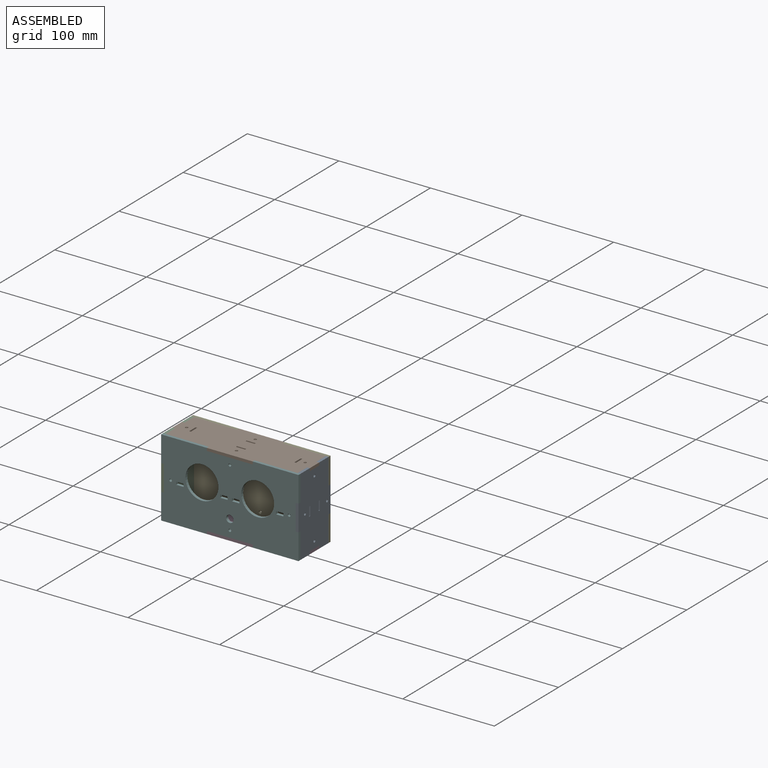
[diagram: assembled view]
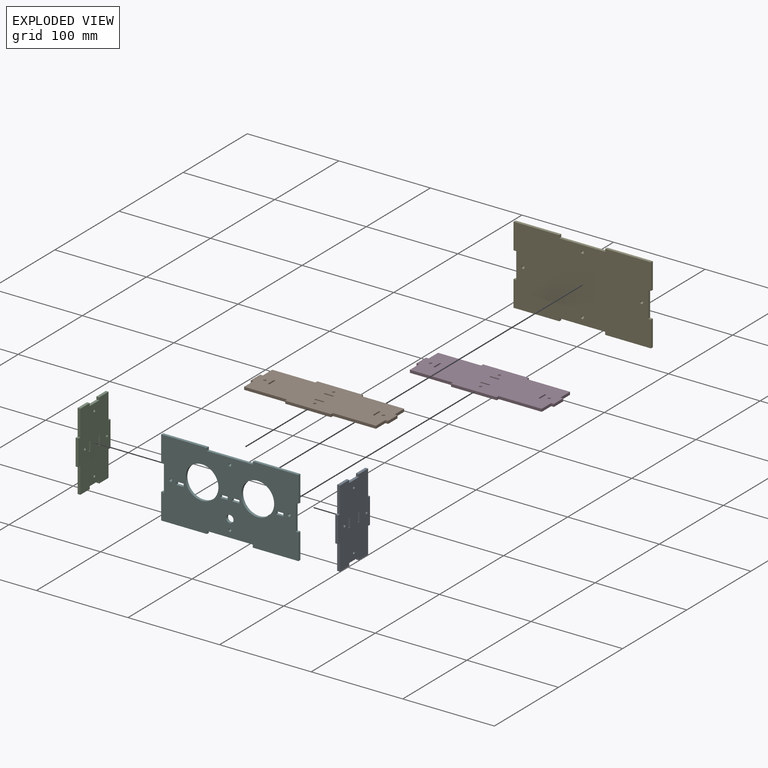
[diagram: exploded view]
GUIDED TOUR — MATED ASSEMBLY (Onshape document 56ded862e4b054e11c27e8ed, AutoMate assembly 56ded862e4b054e11c27e8ed_a44c6361394ee9244f566d48_8e99c92644709b81885d8795_default)

This assembly has 6 components, labeled P0..P5 below (a component is one placed occurrence of a part; the same part can appear more than once), held together by 5 mates. A mate is a constraint between two components; its type names the relative motion it leaves free:
  FASTENED — locks the two components together rigidly (no relative motion).
Axis/direction vectors are unit vectors and 'through' points are millimeter coordinates, both in the assembly's world frame.

MATES
  1. FASTENED "Fastened 2": P2 <-> P5, direction (0.000, -1.000, 0.000) through (112.72, 80.60, 54.43) mm
  2. FASTENED "Fastened 4": P5 <-> P3, direction (0.000, -1.000, 0.000) through (184.72, 80.60, 14.93) mm
  3. FASTENED "Fastened 3": P5 <-> P1, direction (0.000, -1.000, 0.000) through (184.72, 80.60, 93.93) mm
  4. FASTENED "Fastened 1": P5 <-> P0, direction (0.000, -1.000, 0.000) through (256.72, 80.60, 54.43) mm
  5. FASTENED "Fastened 5": P4 <-> P1, direction (0.000, 1.000, 0.000) through (184.72, 130.60, 93.93) mm

ASSEMBLY ORDER
  1. P5 — the base component [order verified]
  2. P1 [order verified]
  3. P3 [order verified]
  4. P0 [order verified]
  5. P4 [order verified]
  6. P2 [order verified]
Order-tag legend:
  [order verified] — this step's position reverses a verified removal order: the component was checked to insert without passing through the ones already placed.

Of the 6 components, 6 carry the full construction recipe — the FeatureScript program that regenerates the part's solid from scratch; the rest are supplied as boundary geometry only.
Each toured component is shown spotlighted twice — in the assembled view, then in the exploded view, where a leader line traces a displaced component back to its assembled socket (saturated green if recipe-attached, orange if geometry-only; every other component desaturated gray) — followed by its recipe or geometry summary and the mates that hold it.
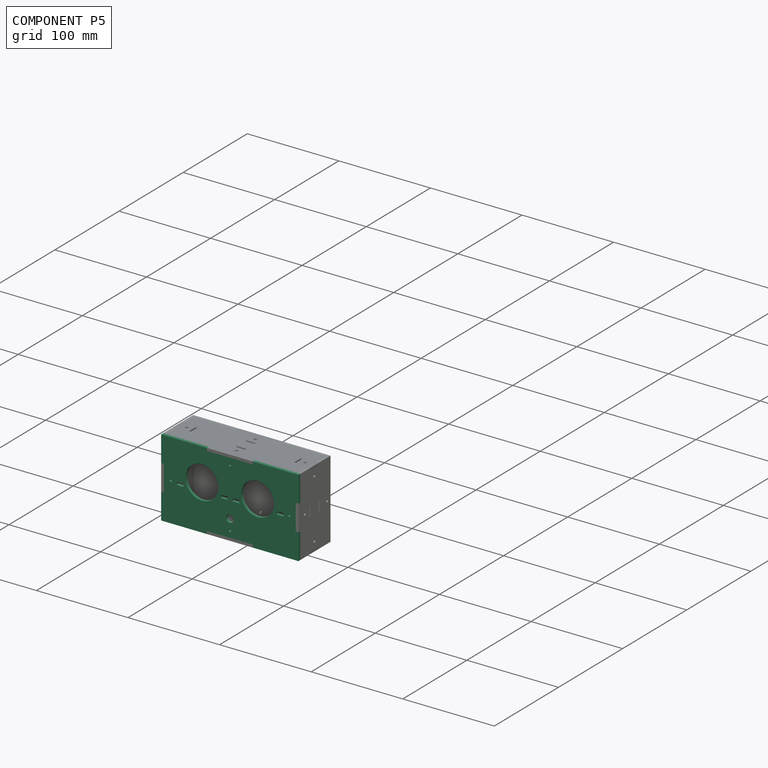
[diagram: component P5 — assembled]
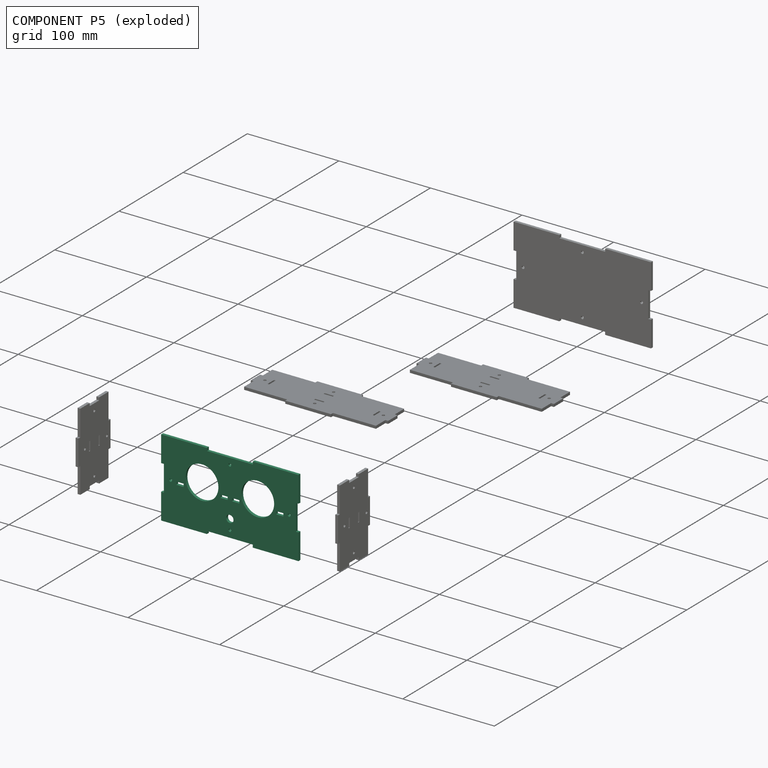
[diagram: component P5 — exploded]
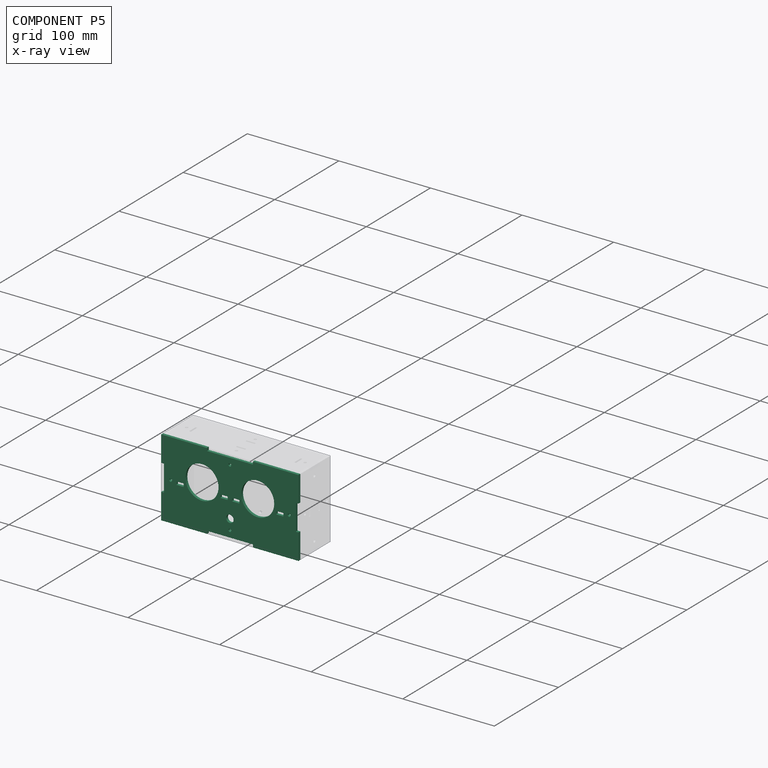
[diagram: component P5 — x-ray view]
COMPONENT P5 — recipe-attached (CADFS 00104917, mesh-verified: the recipe's output STEP matches this component's geometry to below the mesh-comparison resolution (tessellation chordal tolerance ~0.259 mm)).
Held by: FASTENED mate "Fastened 2" to P2; FASTENED mate "Fastened 4" to P3; FASTENED mate "Fastened 3" to P1; FASTENED mate "Fastened 1" to P0.
Construction recipe (FeatureScript — the CAD program that rebuilds this solid; sketch coordinates are in the units given by the * unit suffixes, e.g. mm):

FeatureScript 1511;
import(path : "onshape/std/geometry.fs", version : "1511.0");
import(path : "onshape/std/common.fs", version : "1511.0");
const mm = millimeter;
const VERTEX = EntityType.VERTEX;
const EDGE = EntityType.EDGE;
const FACE = EntityType.FACE;
const BODY = EntityType.BODY;
function v(x, y){return vector(x, y);}
function OD(order){return orderDisambiguation(order);}
function OSD(set){return originalSetDisambiguation(set);}
function TD(topology){return topologyDisambiguation(topology);}
function TDD(query){return trueDependencyDisambiguation(query);}
function sQuery(a, b, c) {return sketchEntityQuery(a, b, c);}

annotation { "Feature Type Name" : "Feature", "Feature Type Description" : "" }
export const myFeature = defineFeature(function(context is Context, id is Id, definition is map)
    precondition{}
    {
        {
            var Q0;
            Q0=qCreatedBy(makeId("Front.planeOp"),FACE);
            var sketch = newSketch(context, id + "F0", { "sketchPlane" : qUnion([Q0])});
            skLineSegment(sketch, "E0.top", {"start": v(-75, -42.5) * mm, "end": v(-25, -42.5) * mm});
            skLineSegment(sketch, "E0.left", {"start": v(-75, 42.5) * mm, "end": v(-75, 14.17) * mm});
            skLineSegment(sketch, "E0.right", {"start": v(75, 42.5) * mm, "end": v(75, 14.17) * mm});
            skLineSegment(sketch, "E1", {"start": v(-75, 42.5) * mm, "end": v(-25, 42.5) * mm});
            skLineSegment(sketch, "E2", {"start": v(-25, 42.5) * mm, "end": v(-25, 39.5) * mm});
            skLineSegment(sketch, "E3", {"start": v(-25, 39.5) * mm, "end": v(25, 39.5) * mm});
            skLineSegment(sketch, "E4", {"start": v(25, 39.5) * mm, "end": v(25, 42.5) * mm});
            skLineSegment(sketch, "E5", {"start": v(25, 42.5) * mm, "end": v(75, 42.5) * mm});
            skLineSegment(sketch, "E6", {"start": v(75, 14.17) * mm, "end": v(72, 14.17) * mm});
            skLineSegment(sketch, "E7", {"start": v(72, 14.17) * mm, "end": v(72, -14.17) * mm});
            skLineSegment(sketch, "E8", {"start": v(72, -14.17) * mm, "end": v(75, -14.17) * mm});
            skLineSegment(sketch, "E9.trimOffspring", {"start": v(75, -14.17) * mm, "end": v(75, -42.5) * mm});
            skLineSegment(sketch, "E10", {"start": v(-75, 14.17) * mm, "end": v(-72, 14.17) * mm});
            skLineSegment(sketch, "E11", {"start": v(-72, 14.17) * mm, "end": v(-72, -14.17) * mm});
            skLineSegment(sketch, "E12", {"start": v(-72, -14.17) * mm, "end": v(-75, -14.17) * mm});
            skLineSegment(sketch, "E13", {"start": v(-25, -42.5) * mm, "end": v(-25, -39.5) * mm});
            skLineSegment(sketch, "E14", {"start": v(-25, -39.5) * mm, "end": v(25, -39.5) * mm});
            skLineSegment(sketch, "E15", {"start": v(25, -39.5) * mm, "end": v(25, -42.5) * mm});
            skLineSegment(sketch, "E16.trimOffspring", {"start": v(-75, -14.17) * mm, "end": v(-75, -42.5) * mm});
            skLineSegment(sketch, "E17.trimOffspring", {"start": v(25, -42.5) * mm, "end": v(75, -42.5) * mm});
            skCircle(sketch, "E18", {"center": v(0, -20.9) * mm, "radius": 4 * mm});
            skCircle(sketch, "E19", {"center": v(0, 32.2) * mm, "radius": 1.5 * mm});
            skCircle(sketch, "E20", {"center": v(64.7, 0) * mm, "radius": 1.5 * mm});
            skCircle(sketch, "E21", {"center": v(0, -32.2) * mm, "radius": 1.5 * mm});
            skCircle(sketch, "E22", {"center": v(-64.7, 0) * mm, "radius": 1.5 * mm});
            skCircle(sketch, "E23", {"center": v(-30.43, 6.9) * mm, "radius": 18 * mm});
            skLineSegment(sketch, "E24.bottom", {"start": v(-10.43, 0.4) * mm, "end": v(-2.33, 0.4) * mm});
            skLineSegment(sketch, "E24.top", {"start": v(-10.43, -2.85) * mm, "end": v(-2.33, -2.85) * mm});
            skLineSegment(sketch, "E24.left", {"start": v(-10.43, 0.4) * mm, "end": v(-10.43, -2.85) * mm});
            skLineSegment(sketch, "E24.right", {"start": v(-2.33, 0.4) * mm, "end": v(-2.33, -2.85) * mm});
            skLineSegment(sketch, "E25.bottom", {"start": v(-50.43, 0.4) * mm, "end": v(-58.53, 0.4) * mm});
            skLineSegment(sketch, "E25.top", {"start": v(-50.43, -2.85) * mm, "end": v(-58.53, -2.85) * mm});
            skLineSegment(sketch, "E25.left", {"start": v(-50.43, 0.4) * mm, "end": v(-50.43, -2.85) * mm});
            skLineSegment(sketch, "E25.right", {"start": v(-58.53, 0.4) * mm, "end": v(-58.53, -2.85) * mm});
            skLineSegment(sketch, "E26", {"start": v(-72, 0) * mm, "end": v(-64.7, 0) * mm, "construction": true});
            skLineSegment(sketch, "E27", {"start": v(64.7, 0) * mm, "end": v(72, 0) * mm, "construction": true});
            skLineSegment(sketch, "E28", {"start": v(-75, 24.9) * mm, "end": v(75, 24.9) * mm, "construction": true});
            skLineSegment(sketch, "E29", {"start": v(-75, -11.1) * mm, "end": v(75, -11.1) * mm, "construction": true});
            skLineSegment(sketch, "E30", {"start": v(0, 30.7) * mm, "end": v(0, 24.9) * mm, "construction": true});
            skLineSegment(sketch, "E31", {"start": v(0, -16.9) * mm, "end": v(0, -11.1) * mm, "construction": true});
            skLineSegment(sketch, "E32", {"start": v(0, -30.7) * mm, "end": v(0, -24.9) * mm, "construction": true});
            skLineSegment(sketch, "E33", {"start": v(0, 39.5) * mm, "end": v(0, -39.5) * mm, "construction": true});
            skLineSegment(sketch, "E34.MirrorCS", {"start": v(2.33, 0.4) * mm, "end": v(2.33, -2.85) * mm});
            skLineSegment(sketch, "E35.MirrorCS", {"start": v(10.43, 0.4) * mm, "end": v(10.43, -2.85) * mm});
            skLineSegment(sketch, "E36.MirrorCS", {"start": v(50.43, 0.4) * mm, "end": v(50.43, -2.85) * mm});
            skLineSegment(sketch, "E37.MirrorCS", {"start": v(58.53, 0.4) * mm, "end": v(58.53, -2.85) * mm});
            skLineSegment(sketch, "E38.MirrorCS", {"start": v(10.43, -2.85) * mm, "end": v(2.33, -2.85) * mm});
            skLineSegment(sketch, "E39.MirrorCS", {"start": v(50.43, 0.4) * mm, "end": v(58.53, 0.4) * mm});
            skCircle(sketch, "E40.MirrorC", {"center": v(30.43, 6.9) * mm, "radius": 18 * mm});
            skLineSegment(sketch, "E41.MirrorCS", {"start": v(10.43, 0.4) * mm, "end": v(2.33, 0.4) * mm});
            skLineSegment(sketch, "E42.MirrorCS", {"start": v(50.43, -2.85) * mm, "end": v(58.53, -2.85) * mm});
            skLineSegment(sketch, "E43", {"start": v(-58.53, 0) * mm, "end": v(-63.2, 0) * mm});
            skLineSegment(sketch, "E44", {"start": v(58.53, 0) * mm, "end": v(63.2, 0) * mm, "construction": true});
            skLineSegment(sketch, "E45", {"start": v(-2.33, -1.22) * mm, "end": v(2.33, -1.22) * mm, "construction": true});
            skSolve(sketch);
        }
        {
            var Q0;
            Q0=qSketchRegion(id+"F0",true);
            extrude(context, id + "F1", {"entities" : qUnion([Q0]), "depth" : 3 * mm});
        }
        {
            var Q0;
            Q0=makeQuery(id+"F1.opExtrude","SWEPT_BODY",BODY,{"disambiguationData":[OSD([sQuery(id+"F0.wireOp",EDGE,"E0.top"),sQuery(id+"F0.wireOp",EDGE,"E0.left"),sQuery(id+"F0.wireOp",EDGE,"E0.right"),sQuery(id+"F0.wireOp",EDGE,"E1"),sQuery(id+"F0.wireOp",EDGE,"E2"),sQuery(id+"F0.wireOp",EDGE,"E3"),sQuery(id+"F0.wireOp",EDGE,"E4"),sQuery(id+"F0.wireOp",EDGE,"E5"),sQuery(id+"F0.wireOp",EDGE,"E6"),sQuery(id+"F0.wireOp",EDGE,"E7"),sQuery(id+"F0.wireOp",EDGE,"E8"),sQuery(id+"F0.wireOp",EDGE,"E9.trimOffspring"),sQuery(id+"F0.wireOp",EDGE,"E10"),sQuery(id+"F0.wireOp",EDGE,"E11"),sQuery(id+"F0.wireOp",EDGE,"E12"),sQuery(id+"F0.wireOp",EDGE,"E13"),sQuery(id+"F0.wireOp",EDGE,"E14"),sQuery(id+"F0.wireOp",EDGE,"E15"),sQuery(id+"F0.wireOp",EDGE,"E16.trimOffspring"),sQuery(id+"F0.wireOp",EDGE,"E17.trimOffspring"),sQuery(id+"F0.wireOp",EDGE,"iJvMOkkT-Gsvz-D80s-Lrck-NuYzV2775GFc"),sQuery(id+"F0.wireOp",EDGE,"95r7G61u-81NE-ogXZ-HZlh-HaEjHri7Uc5C"),sQuery(id+"F0.wireOp",EDGE,"kNa5tEdO-uy4Q-kRTS-gWff-R1CwjTJMmlwP"),sQuery(id+"F0.wireOp",EDGE,"NSmLs8Xq-7i2g-OZIT-hmmc-yelxhuIJ4KvX"),sQuery(id+"F0.wireOp",EDGE,"4YweHJoU-akzP-T6YO-Ozvt-s9SiKn9Ip7Ij"),sQuery(id+"F0.wireOp",EDGE,"DRZYSCKz-exI7-oD3f-2VZ2-mNw9MquuhidN"),sQuery(id+"F0.wireOp",EDGE,"cFZweqHX-i8zY-QQJQ-dr00-DEtuZUepJHJH"),sQuery(id+"F0.wireOp",EDGE,"vflKgIvX-I86b-ziDt-TOTA-sqA9vDxPemz3"),sQuery(id+"F0.wireOp",EDGE,"E18"),sQuery(id+"F0.wireOp",EDGE,"E19"),sQuery(id+"F0.wireOp",EDGE,"E20"),sQuery(id+"F0.wireOp",EDGE,"E21"),sQuery(id+"F0.wireOp",EDGE,"E22")])]});
            transform(context, id + "F2", {"entities" : qUnion([Q0]), "transformType" : TransformType.TRANSLATION_3D, "dx" : 0 * mm, "dy" : 60 * mm, "dz" : 0 * mm, "makeCopy" : true});
        }
        {
            var Q0;
            Q0=makeQuery(id+"F2.opPattern","COPY",BODY,{"derivedFrom":makeQuery(id+"F1.opExtrude","SWEPT_BODY",BODY,{"disambiguationData":[OSD([sQuery(id+"F0.wireOp",EDGE,"E0.top"),sQuery(id+"F0.wireOp",EDGE,"E0.left"),sQuery(id+"F0.wireOp",EDGE,"E0.right"),sQuery(id+"F0.wireOp",EDGE,"E1"),sQuery(id+"F0.wireOp",EDGE,"E2"),sQuery(id+"F0.wireOp",EDGE,"E3"),sQuery(id+"F0.wireOp",EDGE,"E4"),sQuery(id+"F0.wireOp",EDGE,"E5"),sQuery(id+"F0.wireOp",EDGE,"E6"),sQuery(id+"F0.wireOp",EDGE,"E7"),sQuery(id+"F0.wireOp",EDGE,"E8"),sQuery(id+"F0.wireOp",EDGE,"E9.trimOffspring"),sQuery(id+"F0.wireOp",EDGE,"E10"),sQuery(id+"F0.wireOp",EDGE,"E11"),sQuery(id+"F0.wireOp",EDGE,"E12"),sQuery(id+"F0.wireOp",EDGE,"E13"),sQuery(id+"F0.wireOp",EDGE,"E14"),sQuery(id+"F0.wireOp",EDGE,"E15"),sQuery(id+"F0.wireOp",EDGE,"E16.trimOffspring"),sQuery(id+"F0.wireOp",EDGE,"E17.trimOffspring"),sQuery(id+"F0.wireOp",EDGE,"iJvMOkkT-Gsvz-D80s-Lrck-NuYzV2775GFc"),sQuery(id+"F0.wireOp",EDGE,"95r7G61u-81NE-ogXZ-HZlh-HaEjHri7Uc5C"),sQuery(id+"F0.wireOp",EDGE,"kNa5tEdO-uy4Q-kRTS-gWff-R1CwjTJMmlwP"),sQuery(id+"F0.wireOp",EDGE,"NSmLs8Xq-7i2g-OZIT-hmmc-yelxhuIJ4KvX"),sQuery(id+"F0.wireOp",EDGE,"4YweHJoU-akzP-T6YO-Ozvt-s9SiKn9Ip7Ij"),sQuery(id+"F0.wireOp",EDGE,"DRZYSCKz-exI7-oD3f-2VZ2-mNw9MquuhidN"),sQuery(id+"F0.wireOp",EDGE,"cFZweqHX-i8zY-QQJQ-dr00-DEtuZUepJHJH"),sQuery(id+"F0.wireOp",EDGE,"vflKgIvX-I86b-ziDt-TOTA-sqA9vDxPemz3"),sQuery(id+"F0.wireOp",EDGE,"E18"),sQuery(id+"F0.wireOp",EDGE,"E19"),sQuery(id+"F0.wireOp",EDGE,"E20"),sQuery(id+"F0.wireOp",EDGE,"E21"),sQuery(id+"F0.wireOp",EDGE,"E22")])]}),"instanceName":"1"});
            deleteBodies(context, id + "F3", {"entities" : qUnion([Q0])});
        }
    });
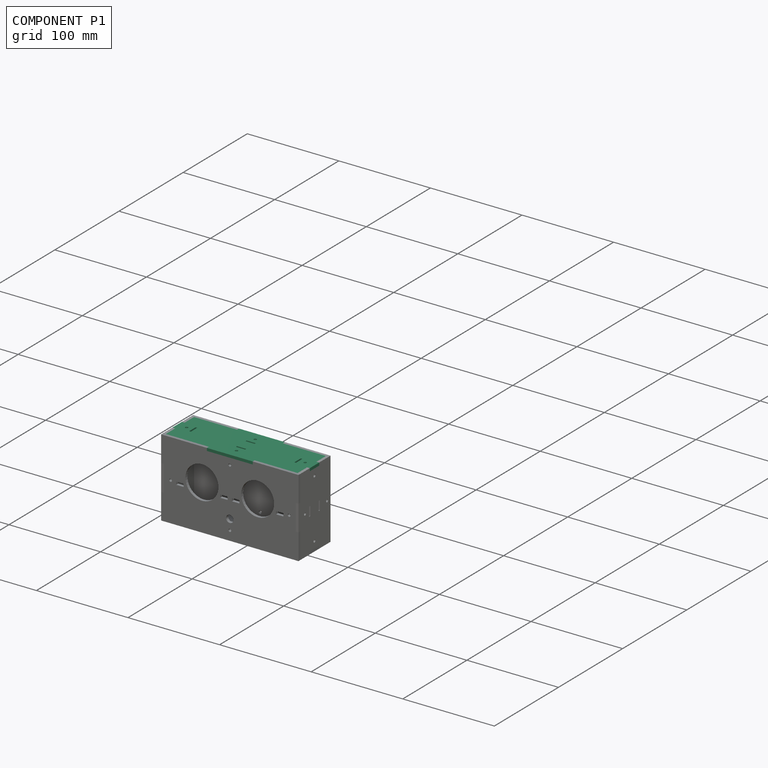
[diagram: component P1 — assembled]
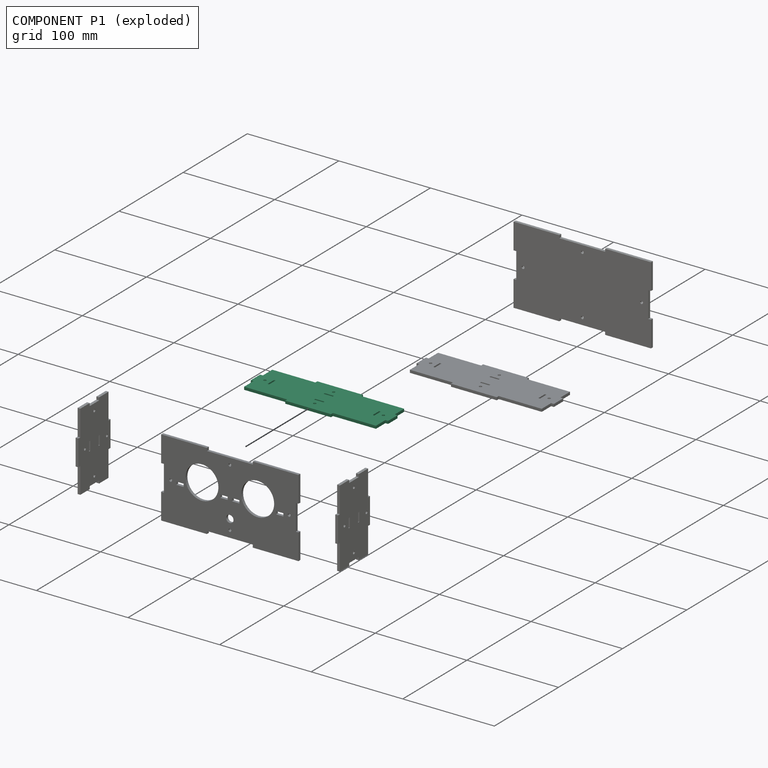
[diagram: component P1 — exploded]
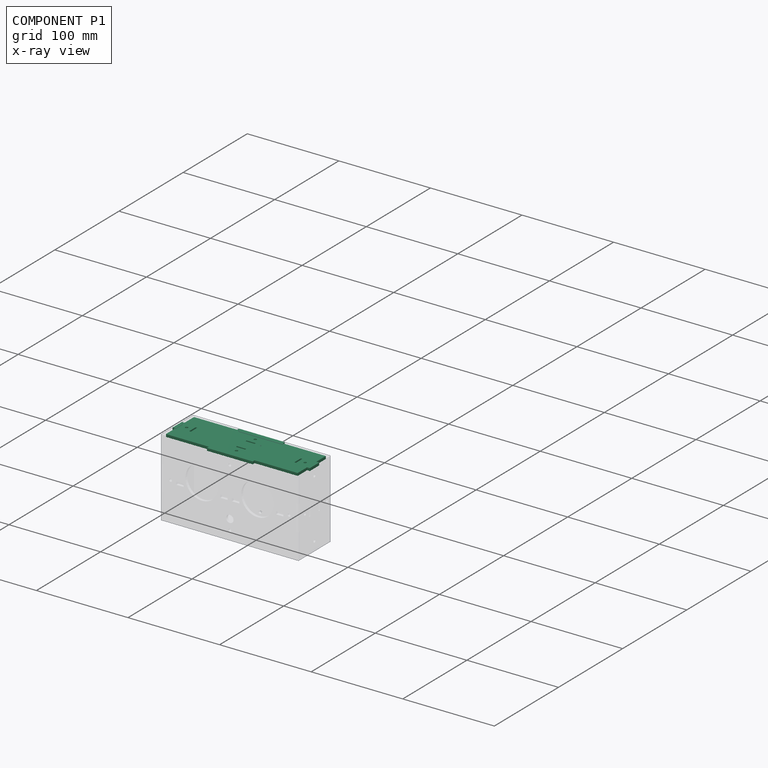
[diagram: component P1 — x-ray view]
COMPONENT P1 — recipe-attached (CADFS 00104920, mesh-verified: the recipe's output STEP matches this component's geometry to below the mesh-comparison resolution (tessellation chordal tolerance ~0.237 mm)).
Held by: FASTENED mate "Fastened 3" to P5; FASTENED mate "Fastened 5" to P4.
Construction recipe (FeatureScript — the CAD program that rebuilds this solid; sketch coordinates are in the units given by the * unit suffixes, e.g. mm):

FeatureScript 1511;
import(path : "onshape/std/geometry.fs", version : "1511.0");
import(path : "onshape/std/common.fs", version : "1511.0");
const mm = millimeter;
const VERTEX = EntityType.VERTEX;
const EDGE = EntityType.EDGE;
const FACE = EntityType.FACE;
const BODY = EntityType.BODY;
function v(x, y){return vector(x, y);}
function OD(order){return orderDisambiguation(order);}
function OSD(set){return originalSetDisambiguation(set);}
function TD(topology){return topologyDisambiguation(topology);}
function TDD(query){return trueDependencyDisambiguation(query);}
function sQuery(a, b, c) {return sketchEntityQuery(a, b, c);}

annotation { "Feature Type Name" : "Feature", "Feature Type Description" : "" }
export const myFeature = defineFeature(function(context is Context, id is Id, definition is map)
    precondition{}
    {
        {
            var Q0;
            Q0=qCreatedBy(makeId("Top.planeOp"),FACE);
            var sketch = newSketch(context, id + "F0", { "sketchPlane" : qUnion([Q0])});
            skLineSegment(sketch, "E0.bottom", {"start": v(-72, 22) * mm, "end": v(-25, 22) * mm});
            skLineSegment(sketch, "E0.top", {"start": v(-72, -22) * mm, "end": v(-25, -22) * mm});
            skLineSegment(sketch, "E0.left", {"start": v(-72, 22) * mm, "end": v(-72, 7.33) * mm});
            skLineSegment(sketch, "E0.right", {"start": v(72, 22) * mm, "end": v(72, 7.33) * mm});
            skLineSegment(sketch, "E1.bottom", {"start": v(-72, 7.33) * mm, "end": v(-75, 7.33) * mm});
            skLineSegment(sketch, "E1.top", {"start": v(-72, -7.33) * mm, "end": v(-75, -7.33) * mm});
            skLineSegment(sketch, "E1.right", {"start": v(-75, 7.33) * mm, "end": v(-75, -7.33) * mm});
            skLineSegment(sketch, "E2.top", {"start": v(-25, 25) * mm, "end": v(25, 25) * mm});
            skLineSegment(sketch, "E2.left", {"start": v(-25, 22) * mm, "end": v(-25, 25) * mm});
            skLineSegment(sketch, "E2.right", {"start": v(25, 22) * mm, "end": v(25, 25) * mm});
            skLineSegment(sketch, "E3.bottom", {"start": v(72, 7.33) * mm, "end": v(75, 7.33) * mm});
            skLineSegment(sketch, "E3.top", {"start": v(72, -7.33) * mm, "end": v(75, -7.33) * mm});
            skLineSegment(sketch, "E3.right", {"start": v(75, 7.33) * mm, "end": v(75, -7.33) * mm});
            skLineSegment(sketch, "E4.top", {"start": v(25, -25) * mm, "end": v(-25, -25) * mm});
            skLineSegment(sketch, "E4.left", {"start": v(25, -22) * mm, "end": v(25, -25) * mm});
            skLineSegment(sketch, "E4.right", {"start": v(-25, -22) * mm, "end": v(-25, -25) * mm});
            skLineSegment(sketch, "E5.trimOffspring", {"start": v(25, 22) * mm, "end": v(72, 22) * mm});
            skLineSegment(sketch, "E6.trimOffspring", {"start": v(25, -22) * mm, "end": v(72, -22) * mm});
            skLineSegment(sketch, "E7.trimOffspring", {"start": v(-72, -7.33) * mm, "end": v(-72, -22) * mm});
            skLineSegment(sketch, "E8.trimOffspring", {"start": v(72, -7.33) * mm, "end": v(72, -22) * mm});
            skLineSegment(sketch, "E9", {"start": v(-75, 25) * mm, "end": v(-25, 25) * mm, "construction": true});
            skLineSegment(sketch, "E10", {"start": v(25, 25) * mm, "end": v(75, 25) * mm, "construction": true});
            skCircle(sketch, "E11", {"center": v(-64.7, 0) * mm, "radius": 1.5 * mm});
            skLineSegment(sketch, "E12.bottom", {"start": v(-58.3, 5) * mm, "end": v(-56.5, 5) * mm});
            skLineSegment(sketch, "E12.top", {"start": v(-58.3, -5) * mm, "end": v(-56.5, -5) * mm});
            skLineSegment(sketch, "E12.left", {"start": v(-58.3, 5) * mm, "end": v(-58.3, -5) * mm});
            skLineSegment(sketch, "E12.right", {"start": v(-56.5, 5) * mm, "end": v(-56.5, -5) * mm});
            skLineSegment(sketch, "E13.MirrorCS", {"start": v(58.3, 5) * mm, "end": v(56.5, 5) * mm});
            skLineSegment(sketch, "E14.MirrorCS", {"start": v(58.3, -5) * mm, "end": v(56.5, -5) * mm});
            skLineSegment(sketch, "E15.MirrorCS", {"start": v(56.5, 5) * mm, "end": v(56.5, -5) * mm});
            skLineSegment(sketch, "E16.MirrorCS", {"start": v(58.3, 5) * mm, "end": v(58.3, -5) * mm});
            skCircle(sketch, "E17", {"center": v(0, 14.7) * mm, "radius": 1.5 * mm});
            skLineSegment(sketch, "E18.bottom", {"start": v(5, 8.3) * mm, "end": v(-5, 8.3) * mm});
            skLineSegment(sketch, "E18.top", {"start": v(5, 6.5) * mm, "end": v(-5, 6.5) * mm});
            skLineSegment(sketch, "E18.left", {"start": v(5, 8.3) * mm, "end": v(5, 6.5) * mm});
            skLineSegment(sketch, "E18.right", {"start": v(-5, 8.3) * mm, "end": v(-5, 6.5) * mm});
            skLineSegment(sketch, "E19.MirrorCS", {"start": v(-5, -8.3) * mm, "end": v(-5, -6.5) * mm});
            skLineSegment(sketch, "E20.MirrorCS", {"start": v(5, -8.3) * mm, "end": v(5, -6.5) * mm});
            skCircle(sketch, "E21.MirrorC", {"center": v(0, -14.7) * mm, "radius": 1.5 * mm});
            skLineSegment(sketch, "E22.MirrorCS", {"start": v(5, -6.5) * mm, "end": v(-5, -6.5) * mm});
            skLineSegment(sketch, "E23.MirrorCS", {"start": v(5, -8.3) * mm, "end": v(-5, -8.3) * mm});
            skCircle(sketch, "E24.MirrorC", {"center": v(64.7, 0) * mm, "radius": 1.5 * mm});
            skSolve(sketch);
        }
        {
            var Q0;
            Q0=qSketchRegion(id+"F0",true);
            extrude(context, id + "F1", {"entities" : qUnion([Q0]), "depth" : 3 * mm});
        }
    });
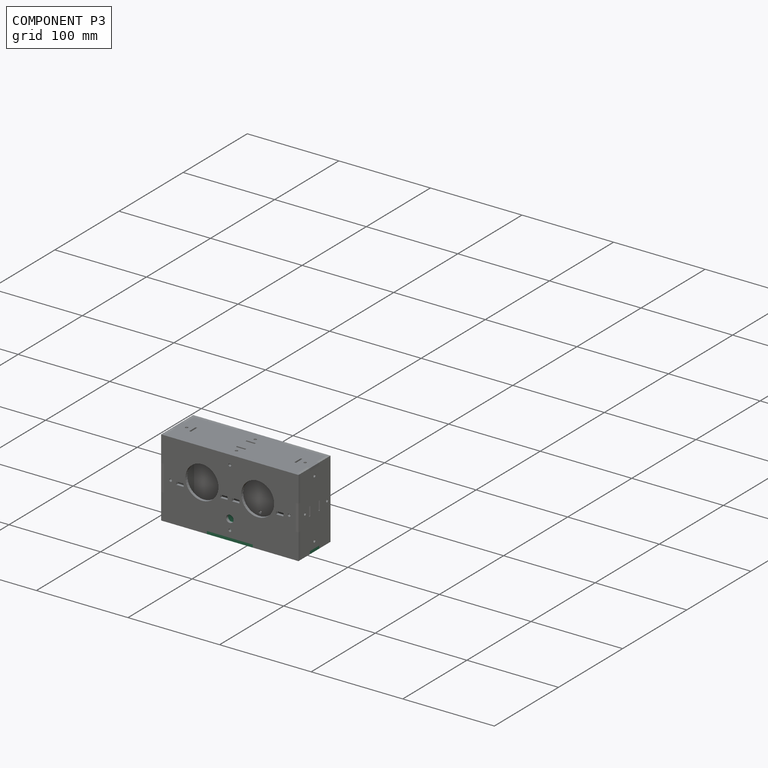
[diagram: component P3 — assembled]
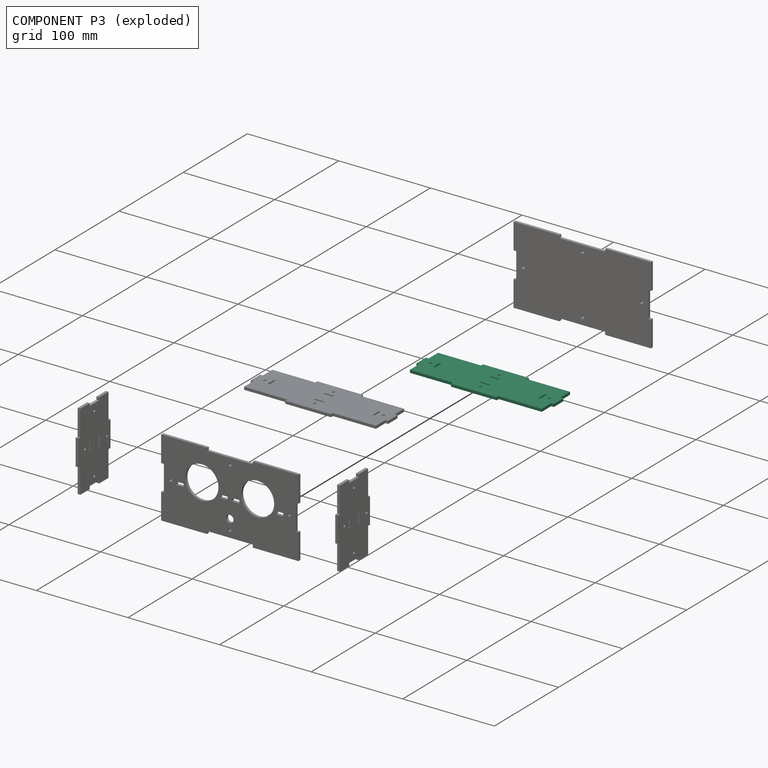
[diagram: component P3 — exploded]
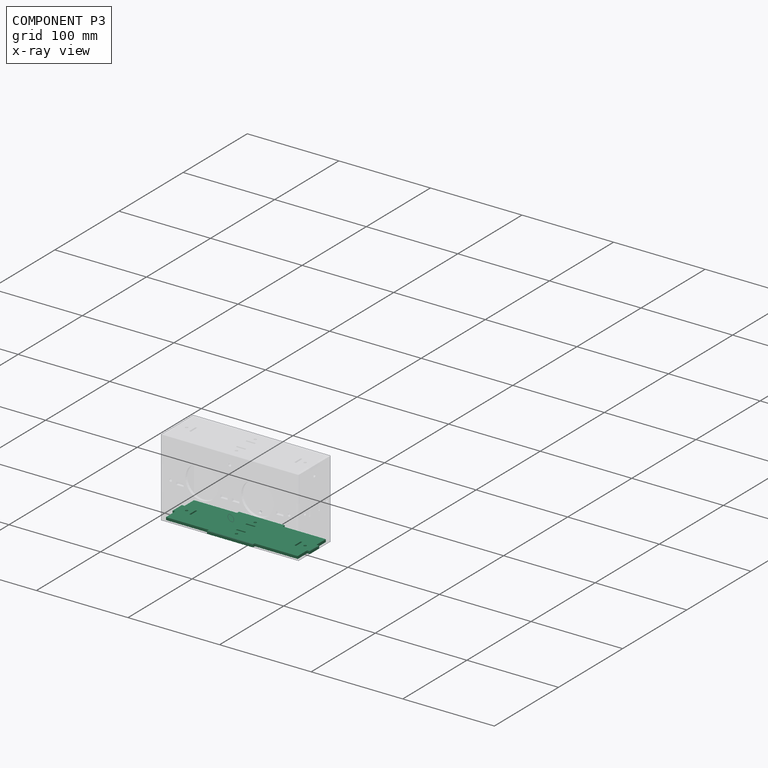
[diagram: component P3 — x-ray view]
COMPONENT P3 — same part as P1 (CADFS 00104920); its construction recipe is shown at P1.
Held by: FASTENED mate "Fastened 4" to P5.
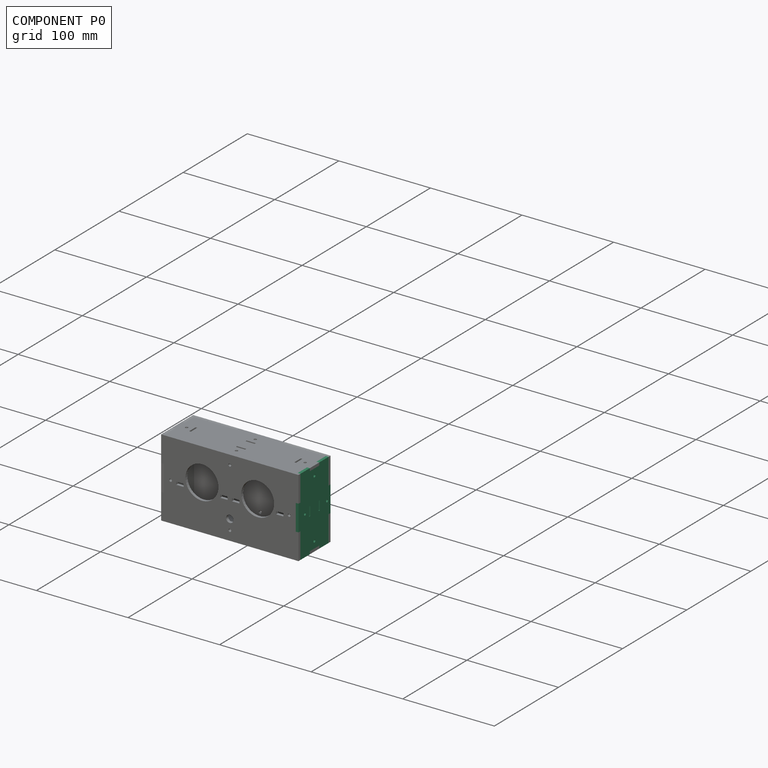
[diagram: component P0 — assembled]
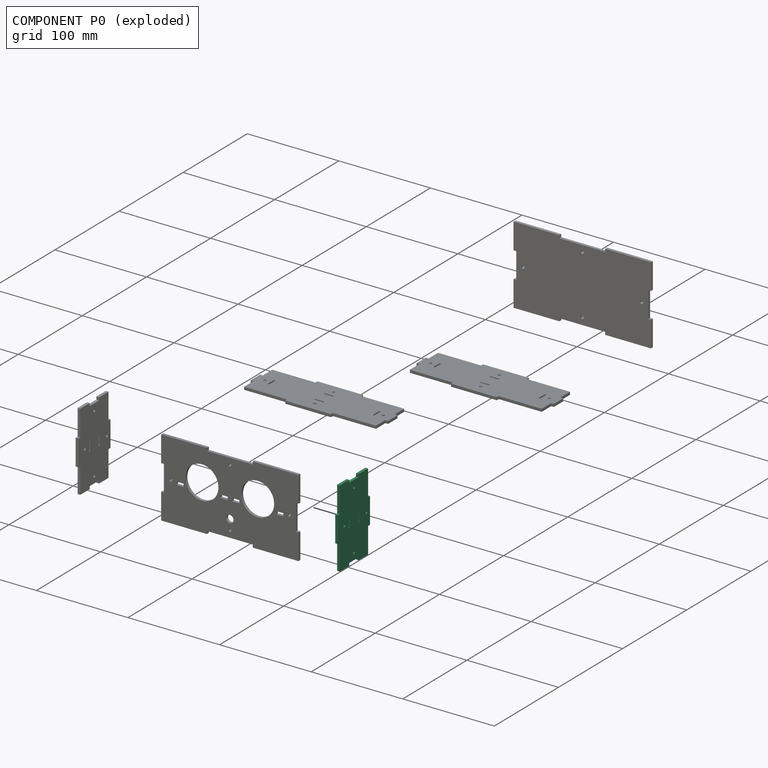
[diagram: component P0 — exploded]
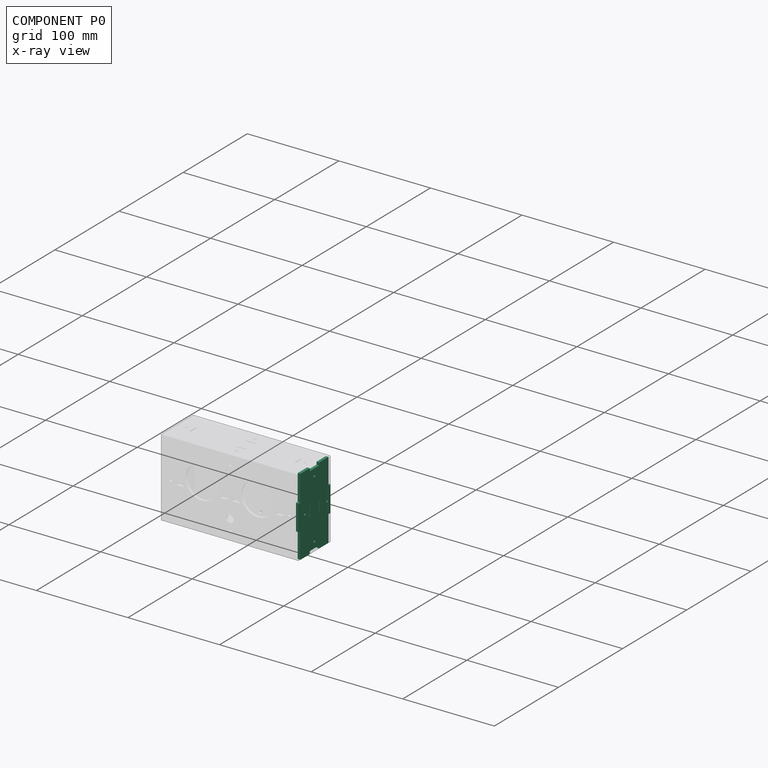
[diagram: component P0 — x-ray view]
COMPONENT P0 — recipe-attached (CADFS 00104919, mesh-verified: the recipe's output STEP matches this component's geometry to below the mesh-comparison resolution (tessellation chordal tolerance ~0.148 mm)).
Held by: FASTENED mate "Fastened 1" to P5.
Construction recipe (FeatureScript — the CAD program that rebuilds this solid; sketch coordinates are in the units given by the * unit suffixes, e.g. mm):

FeatureScript 1511;
import(path : "onshape/std/geometry.fs", version : "1511.0");
import(path : "onshape/std/common.fs", version : "1511.0");
const mm = millimeter;
const VERTEX = EntityType.VERTEX;
const EDGE = EntityType.EDGE;
const FACE = EntityType.FACE;
const BODY = EntityType.BODY;
function v(x, y){return vector(x, y);}
function OD(order){return orderDisambiguation(order);}
function OSD(set){return originalSetDisambiguation(set);}
function TD(topology){return topologyDisambiguation(topology);}
function TDD(query){return trueDependencyDisambiguation(query);}
function sQuery(a, b, c) {return sketchEntityQuery(a, b, c);}

annotation { "Feature Type Name" : "Feature", "Feature Type Description" : "" }
export const myFeature = defineFeature(function(context is Context, id is Id, definition is map)
    precondition{}
    {
        {
            var Q0;
            Q0=qCreatedBy(makeId("Right.planeOp"),FACE);
            var sketch = newSketch(context, id + "F0", { "sketchPlane" : qUnion([Q0])});
            skLineSegment(sketch, "E0.left", {"start": v(-25, 14.17) * mm, "end": v(-25, -14.17) * mm});
            skLineSegment(sketch, "E1.bottom", {"start": v(-25, 14.17) * mm, "end": v(-22, 14.17) * mm});
            skLineSegment(sketch, "E1.right", {"start": v(-22, 14.17) * mm, "end": v(-22, 42.5) * mm});
            skLineSegment(sketch, "E2.bottom", {"start": v(-25, -14.17) * mm, "end": v(-22, -14.17) * mm});
            skLineSegment(sketch, "E2.right", {"start": v(-22, -14.17) * mm, "end": v(-22, -42.5) * mm});
            skLineSegment(sketch, "E3.left", {"start": v(-7.33, 42.5) * mm, "end": v(-7.33, 39.5) * mm});
            skLineSegment(sketch, "E4.left", {"start": v(-7.33, -42.5) * mm, "end": v(-7.33, -39.5) * mm});
            skLineSegment(sketch, "E5", {"start": v(-7.33, 39.5) * mm, "end": v(0, 39.5) * mm});
            skLineSegment(sketch, "E6", {"start": v(0, 39.5) * mm, "end": v(0, 33.7) * mm});
            skLineSegment(sketch, "E7", {"start": v(0, -39.5) * mm, "end": v(-7.33, -39.5) * mm});
            skLineSegment(sketch, "E8", {"start": v(-22, 42.5) * mm, "end": v(-14.67, 42.5) * mm});
            skLineSegment(sketch, "E9", {"start": v(-14.67, 42.5) * mm, "end": v(-7.33, 42.5) * mm});
            skLineSegment(sketch, "E10", {"start": v(-7.33, -42.5) * mm, "end": v(-14.67, -42.5) * mm});
            skLineSegment(sketch, "E11", {"start": v(-14.67, -42.5) * mm, "end": v(-22, -42.5) * mm});
            skCircle(sketch, "E12", {"center": v(-14.7, 0) * mm, "radius": 1.5 * mm});
            skLineSegment(sketch, "E13.bottom", {"start": v(-8.3, 5) * mm, "end": v(-6.5, 5) * mm});
            skLineSegment(sketch, "E13.top", {"start": v(-8.3, -5) * mm, "end": v(-6.5, -5) * mm});
            skLineSegment(sketch, "E13.left", {"start": v(-8.3, 5) * mm, "end": v(-8.3, -5) * mm});
            skLineSegment(sketch, "E13.right", {"start": v(-6.5, 5) * mm, "end": v(-6.5, -5) * mm});
            skArc(sketch, "E14", {"start": v(0, 33.7) * mm, "mid": v(-1.5, 32.2) * mm, "end": v(0, 30.7) * mm});
            skArc(sketch, "E15.MirrorCS", {"start": v(0, -33.7) * mm, "mid": v(-1.5, -32.2) * mm, "end": v(0, -30.7) * mm});
            skLineSegment(sketch, "E16.trimOffspring", {"start": v(0, 30.7) * mm, "end": v(0, -30.7) * mm});
            skLineSegment(sketch, "E17.trimOffspring", {"start": v(0, -33.7) * mm, "end": v(0, -39.5) * mm});
            skArc(sketch, "E18.MirrorCS", {"start": v(0, 33.7) * mm, "mid": v(1.5, 32.2) * mm, "end": v(0, 30.7) * mm});
            skLineSegment(sketch, "E19.MirrorCS", {"start": v(8.3, 5) * mm, "end": v(6.5, 5) * mm});
            skArc(sketch, "E20.MirrorCS", {"start": v(0, -33.7) * mm, "mid": v(1.5, -32.2) * mm, "end": v(0, -30.7) * mm});
            skLineSegment(sketch, "E21.MirrorCS", {"start": v(25, 14.17) * mm, "end": v(22, 14.17) * mm});
            skLineSegment(sketch, "E22.MirrorCS", {"start": v(7.33, -42.5) * mm, "end": v(7.33, -39.5) * mm});
            skLineSegment(sketch, "E23.MirrorCS", {"start": v(7.33, -42.5) * mm, "end": v(14.67, -42.5) * mm});
            skLineSegment(sketch, "E24.MirrorCS", {"start": v(25, -14.17) * mm, "end": v(22, -14.17) * mm});
            skLineSegment(sketch, "E25.MirrorCS", {"start": v(8.3, -5) * mm, "end": v(6.5, -5) * mm});
            skLineSegment(sketch, "E26.MirrorCS", {"start": v(14.67, 42.5) * mm, "end": v(7.33, 42.5) * mm});
            skLineSegment(sketch, "E27.MirrorCS", {"start": v(7.33, 42.5) * mm, "end": v(7.33, 39.5) * mm});
            skLineSegment(sketch, "E28.MirrorCS", {"start": v(6.5, 5) * mm, "end": v(6.5, -5) * mm});
            skLineSegment(sketch, "E29.MirrorCS", {"start": v(7.33, 39.5) * mm, "end": v(0, 39.5) * mm});
            skCircle(sketch, "E30.MirrorC", {"center": v(19.7, 0) * mm, "radius": 1.5 * mm});
            skLineSegment(sketch, "E31.MirrorCS", {"start": v(25, 14.17) * mm, "end": v(25, -14.17) * mm});
            skLineSegment(sketch, "E32.MirrorCS", {"start": v(22, -14.17) * mm, "end": v(22, -42.5) * mm});
            skLineSegment(sketch, "E33.MirrorCS", {"start": v(8.3, 5) * mm, "end": v(8.3, -5) * mm});
            skLineSegment(sketch, "E34.MirrorCS", {"start": v(0, -39.5) * mm, "end": v(7.33, -39.5) * mm});
            skLineSegment(sketch, "E35.MirrorCS", {"start": v(22, 42.5) * mm, "end": v(14.67, 42.5) * mm});
            skLineSegment(sketch, "E36.MirrorCS", {"start": v(22, 14.17) * mm, "end": v(22, 42.5) * mm});
            skLineSegment(sketch, "E37.MirrorCS", {"start": v(14.67, -42.5) * mm, "end": v(22, -42.5) * mm});
            skSolve(sketch);
        }
        {
            var Q0;
            Q0=qSketchRegion(id+"F0",true);
            extrude(context, id + "F1", {"entities" : qUnion([Q0]), "depth" : 3 * mm});
        }
    });
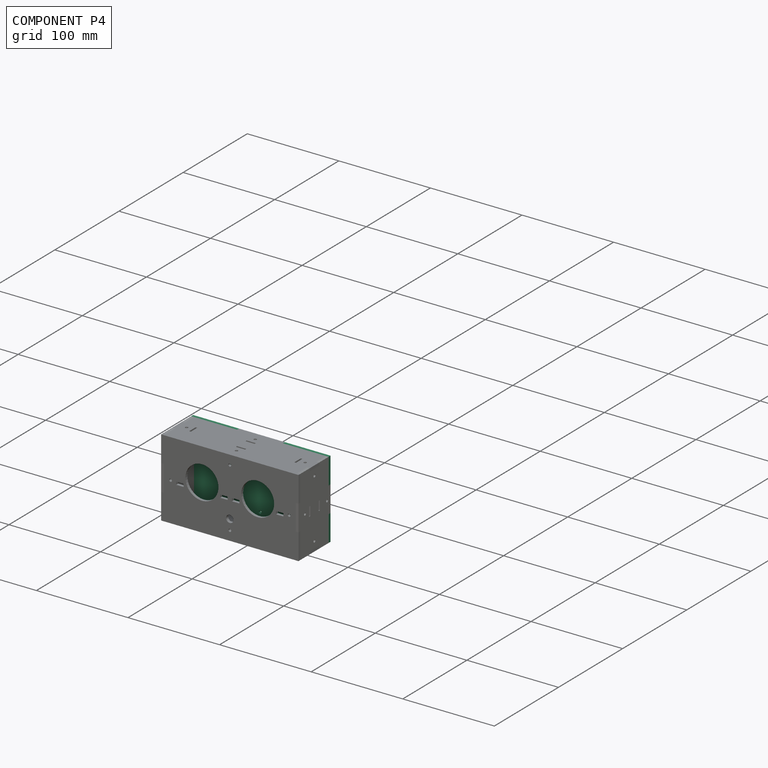
[diagram: component P4 — assembled]
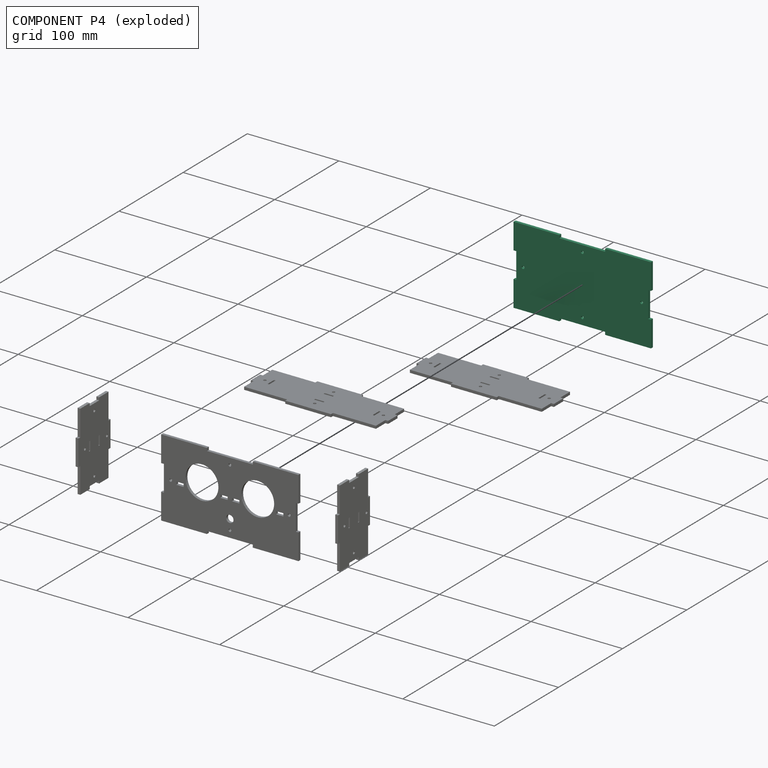
[diagram: component P4 — exploded]
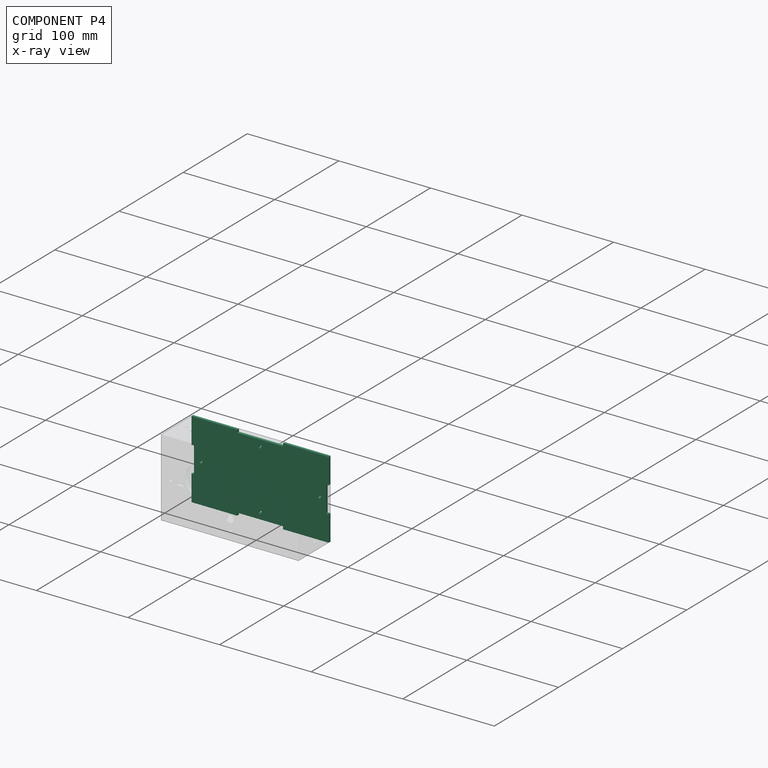
[diagram: component P4 — x-ray view]
COMPONENT P4 — recipe-attached (CADFS 00104918, mesh-verified: the recipe's output STEP matches this component's geometry to below the mesh-comparison resolution (tessellation chordal tolerance ~0.259 mm)).
Held by: FASTENED mate "Fastened 5" to P1.
Construction recipe (FeatureScript — the CAD program that rebuilds this solid; sketch coordinates are in the units given by the * unit suffixes, e.g. mm):

FeatureScript 1511;
import(path : "onshape/std/geometry.fs", version : "1511.0");
import(path : "onshape/std/common.fs", version : "1511.0");
const mm = millimeter;
const VERTEX = EntityType.VERTEX;
const EDGE = EntityType.EDGE;
const FACE = EntityType.FACE;
const BODY = EntityType.BODY;
function v(x, y){return vector(x, y);}
function OD(order){return orderDisambiguation(order);}
function OSD(set){return originalSetDisambiguation(set);}
function TD(topology){return topologyDisambiguation(topology);}
function TDD(query){return trueDependencyDisambiguation(query);}
function sQuery(a, b, c) {return sketchEntityQuery(a, b, c);}

annotation { "Feature Type Name" : "Feature", "Feature Type Description" : "" }
export const myFeature = defineFeature(function(context is Context, id is Id, definition is map)
    precondition{}
    {
        {
            var Q0;
            Q0=qCreatedBy(makeId("Front.planeOp"),FACE);
            var sketch = newSketch(context, id + "F0", { "sketchPlane" : qUnion([Q0])});
            skLineSegment(sketch, "E0.top", {"start": v(-75, -42.5) * mm, "end": v(-25, -42.5) * mm});
            skLineSegment(sketch, "E0.left", {"start": v(-75, 42.5) * mm, "end": v(-75, 14.17) * mm});
            skLineSegment(sketch, "E0.right", {"start": v(75, 42.5) * mm, "end": v(75, 14.17) * mm});
            skLineSegment(sketch, "E1", {"start": v(-75, 42.5) * mm, "end": v(-25, 42.5) * mm});
            skLineSegment(sketch, "E2", {"start": v(-25, 42.5) * mm, "end": v(-25, 39.5) * mm});
            skLineSegment(sketch, "E3", {"start": v(-25, 39.5) * mm, "end": v(25, 39.5) * mm});
            skLineSegment(sketch, "E4", {"start": v(25, 39.5) * mm, "end": v(25, 42.5) * mm});
            skLineSegment(sketch, "E5", {"start": v(25, 42.5) * mm, "end": v(75, 42.5) * mm});
            skLineSegment(sketch, "E6", {"start": v(75, 14.17) * mm, "end": v(72, 14.17) * mm});
            skLineSegment(sketch, "E7", {"start": v(72, 14.17) * mm, "end": v(72, -14.17) * mm});
            skLineSegment(sketch, "E8", {"start": v(72, -14.17) * mm, "end": v(75, -14.17) * mm});
            skLineSegment(sketch, "E9.trimOffspring", {"start": v(75, -14.17) * mm, "end": v(75, -42.5) * mm});
            skLineSegment(sketch, "E10", {"start": v(-75, 14.17) * mm, "end": v(-72, 14.17) * mm});
            skLineSegment(sketch, "E11", {"start": v(-72, 14.17) * mm, "end": v(-72, -14.17) * mm});
            skLineSegment(sketch, "E12", {"start": v(-72, -14.17) * mm, "end": v(-75, -14.17) * mm});
            skLineSegment(sketch, "E13", {"start": v(-25, -42.5) * mm, "end": v(-25, -39.5) * mm});
            skLineSegment(sketch, "E14", {"start": v(-25, -39.5) * mm, "end": v(25, -39.5) * mm});
            skLineSegment(sketch, "E15", {"start": v(25, -39.5) * mm, "end": v(25, -42.5) * mm});
            skLineSegment(sketch, "E16.trimOffspring", {"start": v(-75, -14.17) * mm, "end": v(-75, -42.5) * mm});
            skLineSegment(sketch, "E17.trimOffspring", {"start": v(25, -42.5) * mm, "end": v(75, -42.5) * mm});
            skCircle(sketch, "E18", {"center": v(0, 32.2) * mm, "radius": 1.5 * mm});
            skCircle(sketch, "E19", {"center": v(64.7, 0) * mm, "radius": 1.5 * mm});
            skCircle(sketch, "E20", {"center": v(0, -32.2) * mm, "radius": 1.5 * mm});
            skCircle(sketch, "E21", {"center": v(-64.7, 0) * mm, "radius": 1.5 * mm});
            skSolve(sketch);
        }
        {
            var Q0;
            Q0=qSketchRegion(id+"F0",true);
            extrude(context, id + "F1", {"entities" : qUnion([Q0]), "depth" : 3 * mm});
        }
        {
            var Q0;
            Q0=makeQuery(id+"F1.opExtrude","SWEPT_BODY",BODY,{"disambiguationData":[OSD([sQuery(id+"F0.wireOp",EDGE,"E0.top"),sQuery(id+"F0.wireOp",EDGE,"E0.left"),sQuery(id+"F0.wireOp",EDGE,"E0.right"),sQuery(id+"F0.wireOp",EDGE,"E1"),sQuery(id+"F0.wireOp",EDGE,"E2"),sQuery(id+"F0.wireOp",EDGE,"E3"),sQuery(id+"F0.wireOp",EDGE,"E4"),sQuery(id+"F0.wireOp",EDGE,"E5"),sQuery(id+"F0.wireOp",EDGE,"E6"),sQuery(id+"F0.wireOp",EDGE,"E7"),sQuery(id+"F0.wireOp",EDGE,"E8"),sQuery(id+"F0.wireOp",EDGE,"E9.trimOffspring"),sQuery(id+"F0.wireOp",EDGE,"E10"),sQuery(id+"F0.wireOp",EDGE,"E11"),sQuery(id+"F0.wireOp",EDGE,"E12"),sQuery(id+"F0.wireOp",EDGE,"E13"),sQuery(id+"F0.wireOp",EDGE,"E14"),sQuery(id+"F0.wireOp",EDGE,"E15"),sQuery(id+"F0.wireOp",EDGE,"E16.trimOffspring"),sQuery(id+"F0.wireOp",EDGE,"E17.trimOffspring"),sQuery(id+"F0.wireOp",EDGE,"iJvMOkkT-Gsvz-D80s-Lrck-NuYzV2775GFc"),sQuery(id+"F0.wireOp",EDGE,"95r7G61u-81NE-ogXZ-HZlh-HaEjHri7Uc5C"),sQuery(id+"F0.wireOp",EDGE,"kNa5tEdO-uy4Q-kRTS-gWff-R1CwjTJMmlwP"),sQuery(id+"F0.wireOp",EDGE,"NSmLs8Xq-7i2g-OZIT-hmmc-yelxhuIJ4KvX"),sQuery(id+"F0.wireOp",EDGE,"4YweHJoU-akzP-T6YO-Ozvt-s9SiKn9Ip7Ij"),sQuery(id+"F0.wireOp",EDGE,"DRZYSCKz-exI7-oD3f-2VZ2-mNw9MquuhidN"),sQuery(id+"F0.wireOp",EDGE,"cFZweqHX-i8zY-QQJQ-dr00-DEtuZUepJHJH"),sQuery(id+"F0.wireOp",EDGE,"vflKgIvX-I86b-ziDt-TOTA-sqA9vDxPemz3"),sQuery(id+"F0.wireOp",EDGE,"id5eZwnR-KPJp-Ahn8-yCwL-o96Leq0KhUuP"),sQuery(id+"F0.wireOp",EDGE,"E18"),sQuery(id+"F0.wireOp",EDGE,"E19"),sQuery(id+"F0.wireOp",EDGE,"E20"),sQuery(id+"F0.wireOp",EDGE,"E21")])]});
            transform(context, id + "F2", {"entities" : qUnion([Q0]), "transformType" : TransformType.TRANSLATION_3D, "dx" : 0 * mm, "dy" : 60 * mm, "dz" : 0 * mm, "makeCopy" : true});
        }
        {
            var Q0;
            Q0=makeQuery(id+"F2.opPattern","COPY",BODY,{"derivedFrom":makeQuery(id+"F1.opExtrude","SWEPT_BODY",BODY,{"disambiguationData":[OSD([sQuery(id+"F0.wireOp",EDGE,"E0.top"),sQuery(id+"F0.wireOp",EDGE,"E0.left"),sQuery(id+"F0.wireOp",EDGE,"E0.right"),sQuery(id+"F0.wireOp",EDGE,"E1"),sQuery(id+"F0.wireOp",EDGE,"E2"),sQuery(id+"F0.wireOp",EDGE,"E3"),sQuery(id+"F0.wireOp",EDGE,"E4"),sQuery(id+"F0.wireOp",EDGE,"E5"),sQuery(id+"F0.wireOp",EDGE,"E6"),sQuery(id+"F0.wireOp",EDGE,"E7"),sQuery(id+"F0.wireOp",EDGE,"E8"),sQuery(id+"F0.wireOp",EDGE,"E9.trimOffspring"),sQuery(id+"F0.wireOp",EDGE,"E10"),sQuery(id+"F0.wireOp",EDGE,"E11"),sQuery(id+"F0.wireOp",EDGE,"E12"),sQuery(id+"F0.wireOp",EDGE,"E13"),sQuery(id+"F0.wireOp",EDGE,"E14"),sQuery(id+"F0.wireOp",EDGE,"E15"),sQuery(id+"F0.wireOp",EDGE,"E16.trimOffspring"),sQuery(id+"F0.wireOp",EDGE,"E17.trimOffspring"),sQuery(id+"F0.wireOp",EDGE,"iJvMOkkT-Gsvz-D80s-Lrck-NuYzV2775GFc"),sQuery(id+"F0.wireOp",EDGE,"95r7G61u-81NE-ogXZ-HZlh-HaEjHri7Uc5C"),sQuery(id+"F0.wireOp",EDGE,"kNa5tEdO-uy4Q-kRTS-gWff-R1CwjTJMmlwP"),sQuery(id+"F0.wireOp",EDGE,"NSmLs8Xq-7i2g-OZIT-hmmc-yelxhuIJ4KvX"),sQuery(id+"F0.wireOp",EDGE,"4YweHJoU-akzP-T6YO-Ozvt-s9SiKn9Ip7Ij"),sQuery(id+"F0.wireOp",EDGE,"DRZYSCKz-exI7-oD3f-2VZ2-mNw9MquuhidN"),sQuery(id+"F0.wireOp",EDGE,"cFZweqHX-i8zY-QQJQ-dr00-DEtuZUepJHJH"),sQuery(id+"F0.wireOp",EDGE,"vflKgIvX-I86b-ziDt-TOTA-sqA9vDxPemz3"),sQuery(id+"F0.wireOp",EDGE,"id5eZwnR-KPJp-Ahn8-yCwL-o96Leq0KhUuP"),sQuery(id+"F0.wireOp",EDGE,"E18"),sQuery(id+"F0.wireOp",EDGE,"E19"),sQuery(id+"F0.wireOp",EDGE,"E20"),sQuery(id+"F0.wireOp",EDGE,"E21")])]}),"instanceName":"1"});
            deleteBodies(context, id + "F3", {"entities" : qUnion([Q0])});
        }
    });
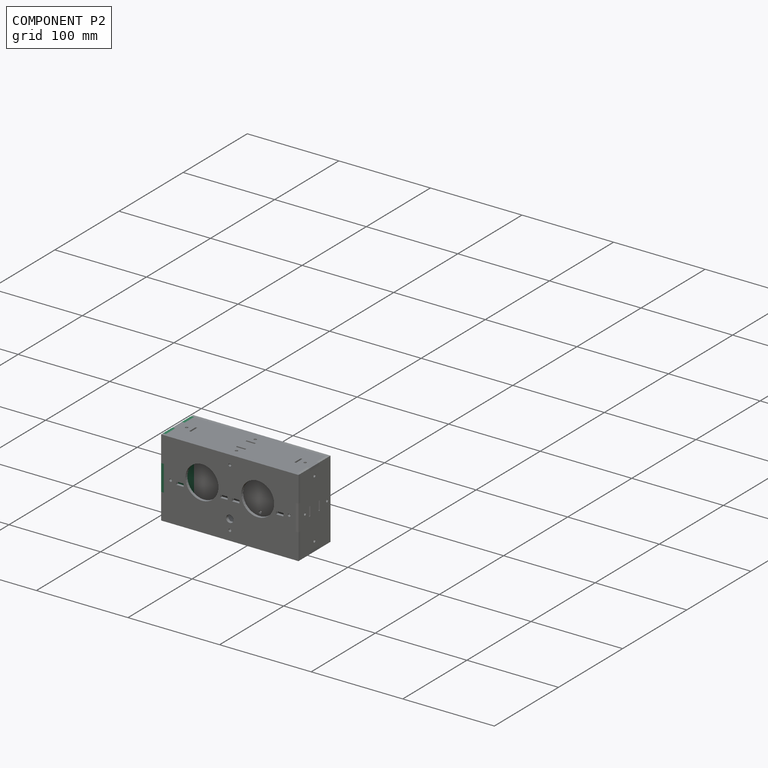
[diagram: component P2 — assembled]
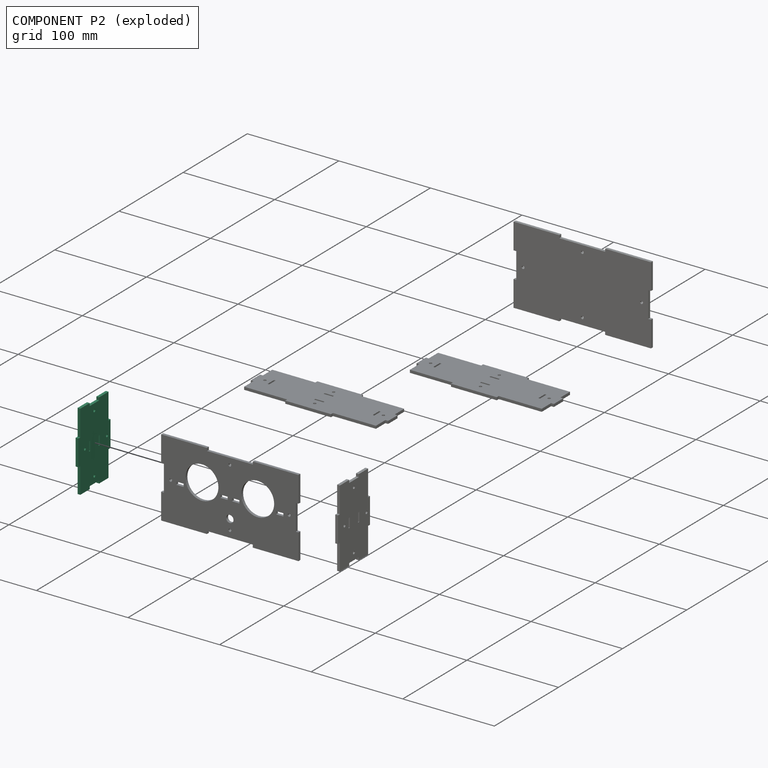
[diagram: component P2 — exploded]
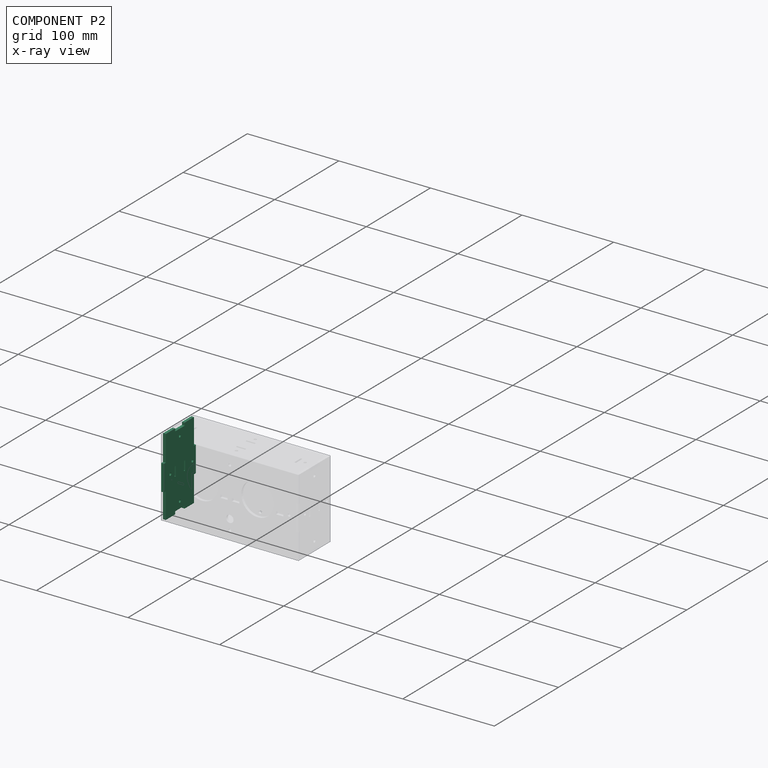
[diagram: component P2 — x-ray view]
COMPONENT P2 — same part as P0 (CADFS 00104919); its construction recipe is shown at P0.
Held by: FASTENED mate "Fastened 2" to P5.
PROVENANCE & LICENSES
Assembly (occurrences, transforms, mates, per-part STEP geometry): AutoMate dataset, Zenodo record 7776208, CC0.
Construction recipes: CADFS (HuggingFace VladPyatov/CADFS, CC-BY-4.0, layered over the ABC dataset), FeatureScript reconstruction programs keyed by ABC model id.
Join: ABC meta listings map ABC model id -> Onshape documentId; within a shared document, parts are matched by geometric signature (bounding-box dims + volume at 0.1% relative tolerance, exact B-rep face/solid counts).
Verification: 6 of this assembly's 6 components carry a recipe attachment, and every attachment is mesh-verified: the CADFS STEP and the AutoMate member STEP were compared as meshes in their shared local frame (symmetric sampled-point-to-mesh distance); worst across the 6 attachments: below the mesh-comparison resolution (tessellation chordal tolerance ~0.259 mm) on a 172 mm part.
Renders: orthographic iso camera (az 35 / el 25); the floor grid conveys scale (grid pitch printed in each image; no ruler). In the exploded view each component is displaced by its stored offset vector: the offsets alone carry the explosion direction (mate normal/axis signs are not orientation cues and do not encode it), and separation distances are assigned per mate-chain, not proportionally to assembly-order depth.
